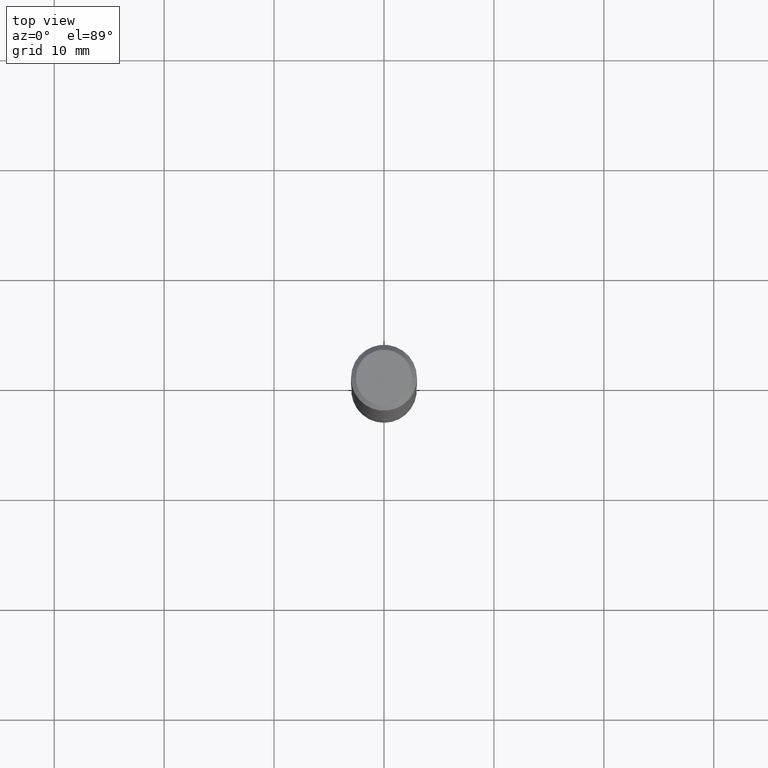
[diagram: clean part render]
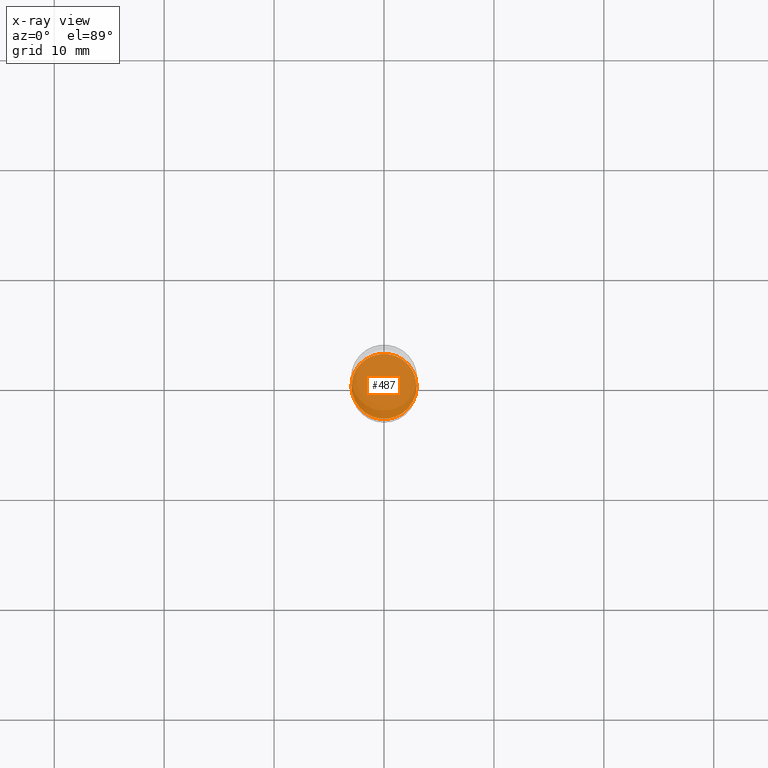
[diagram: x-ray — body ghosted, one internal face saturated and labeled with its STEP entity id]
A machine part, top view, then the same camera in x-ray: the body is ghosted and one INTERNAL B-rep face — a face not visible from any outside direction — is saturated and labeled: STEP entity #487.
In plain terms, the highlighted planar face has unit normal (-0, 0, 1).
Its self-contained STEP definition (entity closure, byte-faithful):
#7 = EDGE_LOOP ( 'NONE', ( #182, #39 ) ) ;
#9 = AXIS2_PLACEMENT_3D ( 'NONE', #125, #286, #280 ) ;
#10 = EDGE_CURVE ( 'NONE', #118, #27, #484, .T. ) ;
#27 = VERTEX_POINT ( 'NONE', #379 ) ;
#39 = ORIENTED_EDGE ( 'NONE', *, *, #10, .F. ) ;
#44 = DIRECTION ( 'NONE',  ( -2.445468806185136597E-29, 3.491481338843145583E-15, 1.000000000000000000 ) ) ;
#118 = VERTEX_POINT ( 'NONE', #335 ) ;
#125 = CARTESIAN_POINT ( 'NONE',  ( 4.428744008001282238E-29, -6.323072704644935995E-15, -1.810999999999999943 ) ) ;
#149 = FACE_OUTER_BOUND ( 'NONE', #7, .T. ) ;
#151 = DIRECTION ( 'NONE',  ( -2.438088387897960049E-29, 3.491481338843145188E-15, 1.000000000000000000 ) ) ;
#161 = CARTESIAN_POINT ( 'NONE',  ( 4.428744008001282238E-29, -6.323072704644935995E-15, -1.810999999999999943 ) ) ;
#182 = ORIENTED_EDGE ( 'NONE', *, *, #328, .F. ) ;
#194 = AXIS2_PLACEMENT_3D ( 'NONE', #489, #151, #269 ) ;
#262 = AXIS2_PLACEMENT_3D ( 'NONE', #161, #44, #342 ) ;
#269 = DIRECTION ( 'NONE',  ( 1.000000000000000000, -6.982962677686265922E-15, 4.876176775795935793E-29 ) ) ;
#280 = DIRECTION ( 'NONE',  ( 1.000000000000000000, -6.982962677686265133E-15, 0.000000000000000000 ) ) ;
#286 = DIRECTION ( 'NONE',  ( -2.445468806185136597E-29, 3.491481338843145583E-15, 1.000000000000000000 ) ) ;
#328 = EDGE_CURVE ( 'NONE', #27, #118, #337, .T. ) ;
#335 = CARTESIAN_POINT ( 'NONE',  ( -0.1166999999999999982, -5.491220104838787693E-15, -1.810999999999999943 ) ) ;
#337 = CIRCLE ( 'NONE', #9, 0.1166999999999999982 ) ;
#342 = DIRECTION ( 'NONE',  ( 1.000000000000000000, -6.982962677686265133E-15, 0.000000000000000000 ) ) ;
#378 = PLANE ( 'NONE',  #194 ) ;
#379 = CARTESIAN_POINT ( 'NONE',  ( 0.1166999999999999982, -7.137984449130923049E-15, -1.810999999999999943 ) ) ;
#484 = CIRCLE ( 'NONE', #262, 0.1166999999999999982 ) ;
#487 = ADVANCED_FACE ( 'NONE', ( #149 ), #378, .F. ) ;
#489 = CARTESIAN_POINT ( 'NONE',  ( 4.428744008001282238E-29, -6.323072704644935995E-15, -1.810999999999999943 ) ) ;